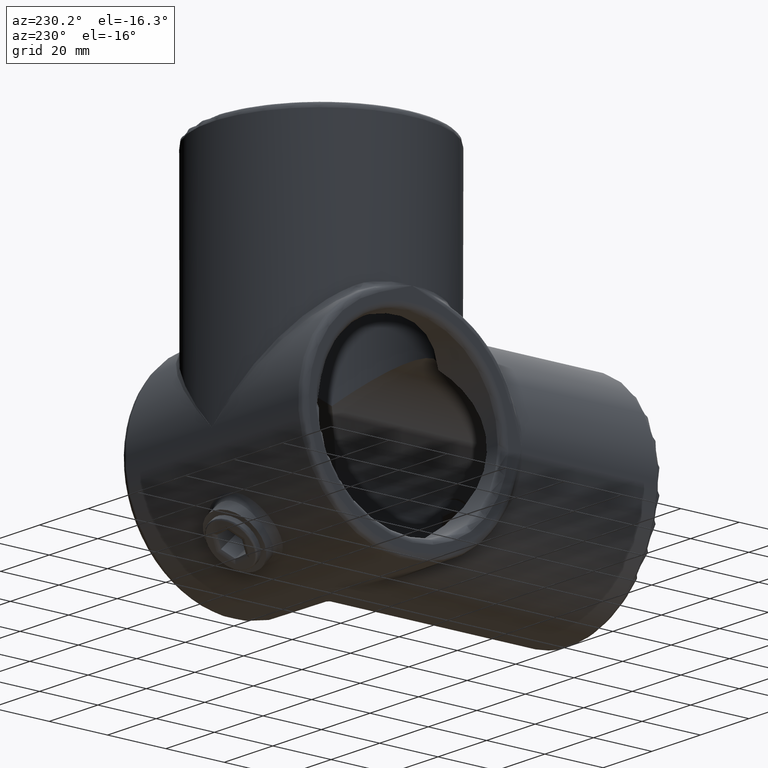
[diagram: clean part render]
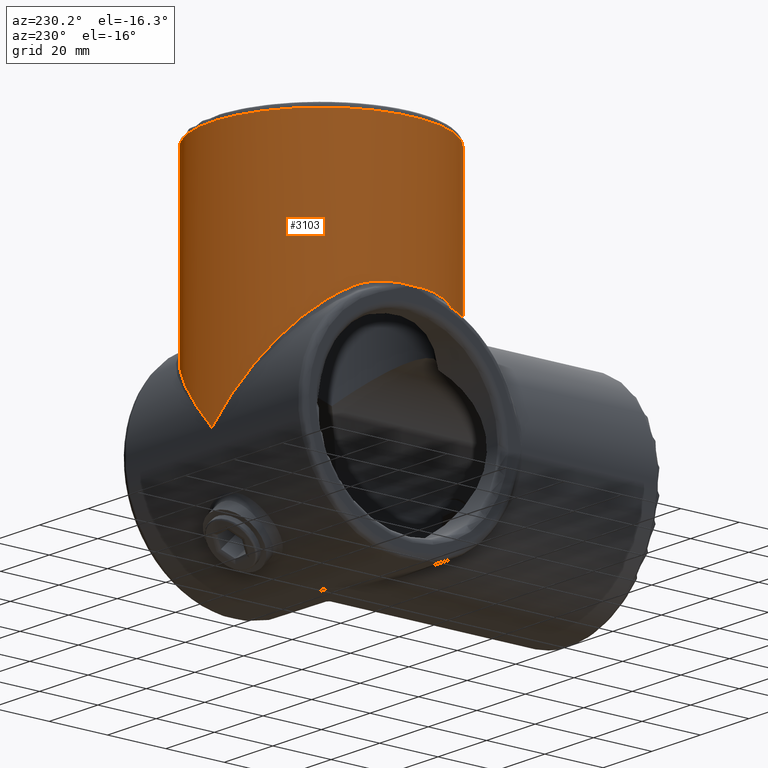
[diagram: same view with one face highlighted and labeled with its STEP entity id]
A machine part, auxiliary view. The second image highlights one B-rep face of the part: STEP entity #3103.
In plain terms, the highlighted cylindrical surface (bore or boss wall) has radius 37.5 mm, axis along (-0, -0, -1).
Its self-contained STEP definition (entity closure, byte-faithful):
#16 = CARTESIAN_POINT ( 'NONE',  ( -37.16886804582735238, 5.074283530360018446, 37.64687128089865098 ) ) ;
#171 = CARTESIAN_POINT ( 'NONE',  ( 33.70253164556961423, -16.44352032502100869, 35.49999999999999289 ) ) ;
#246 = ORIENTED_EDGE ( 'NONE', *, *, #11379, .T. ) ;
#343 = CARTESIAN_POINT ( 'NONE',  ( -37.45871938767920994, -2.033214594498826244, 37.64826296260255845 ) ) ;
#391 = CARTESIAN_POINT ( 'NONE',  ( 36.84076588884041570, 7.073186229652971946, 37.52650034794353928 ) ) ;
#502 = CARTESIAN_POINT ( 'NONE',  ( 37.49999999999998579, 1.015287633926893696, 37.59536827217129940 ) ) ;
#505 = CARTESIAN_POINT ( 'NONE',  ( -36.84076641201562552, -7.073183583681998066, 37.52650057928304506 ) ) ;
#520 = FACE_OUTER_BOUND ( 'NONE', #12398, .T. ) ;
#574 = CARTESIAN_POINT ( 'NONE',  ( 26.51650429449554025, -26.51650429449553314, 27.93071785686863251 ) ) ;
#714 = VERTEX_POINT ( 'NONE', #1768 ) ;
#729 = CARTESIAN_POINT ( 'NONE',  ( 35.94304763402886493, 10.69428242683783914, 76.15391420694000146 ) ) ;
#782 = CARTESIAN_POINT ( 'NONE',  ( 36.88692420147545903, 6.760435417672512770, 81.66684236380487505 ) ) ;
#832 = CARTESIAN_POINT ( 'NONE',  ( 36.37244388609272505, 9.136227189102495316, 79.21094179334554042 ) ) ;
#856 = CARTESIAN_POINT ( 'NONE',  ( 36.21349172177831122, -9.740474075376196694, 78.23579580776552689 ) ) ;
#878 = CARTESIAN_POINT ( 'NONE',  ( 0.000000000000000000, 0.000000000000000000, 83.99999999999998579 ) ) ;
#915 = CARTESIAN_POINT ( 'NONE',  ( 36.02357175092257791, -10.41982299368854292, 76.86673537089235708 ) ) ;
#944 = CARTESIAN_POINT ( 'NONE',  ( 37.49410491353660291, -0.7679522804003066083, 60.02039128000351553 ) ) ;
#973 = VERTEX_POINT ( 'NONE', #13433 ) ;
#989 = CARTESIAN_POINT ( 'NONE',  ( 35.72753137104100318, 11.39269512558609243, 71.23659299706230286 ) ) ;
#1040 = CARTESIAN_POINT ( 'NONE',  ( 36.02335388516703318, 10.42058920284471490, 67.13485408948842803 ) ) ;
#1064 = CARTESIAN_POINT ( 'NONE',  ( 37.47582038187493936, -1.540738528063899215, 83.91689285935017040 ) ) ;
#1107 = VERTEX_POINT ( 'NONE', #12252 ) ;
#1153 = CARTESIAN_POINT ( 'NONE',  ( 36.84128556230474771, -7.070557497887514309, 37.52673011236472433 ) ) ;
#1168 = CARTESIAN_POINT ( 'NONE',  ( -35.55237699891745251, -11.92805473356178858, 36.91368282840622328 ) ) ;
#1187 = CARTESIAN_POINT ( 'NONE',  ( -37.48710930667337493, 1.015450550942059049, 37.58240627360367370 ) ) ;
#1223 = ORIENTED_EDGE ( 'NONE', *, *, #11419, .T. ) ;
#1242 = CARTESIAN_POINT ( 'NONE',  ( -35.87301017381572166, 10.97238578611228199, 37.05731601627933003 ) ) ;
#1281 = CARTESIAN_POINT ( 'NONE',  ( 35.28254248133589499, -12.73231483386052965, 36.79280577951479358 ) ) ;
#1297 = ORIENTED_EDGE ( 'NONE', *, *, #2861, .T. ) ;
#1301 = CARTESIAN_POINT ( 'NONE',  ( -37.29343034741916085, 4.060343866366343590, 37.67382601114798746 ) ) ;
#1325 = CARTESIAN_POINT ( 'NONE',  ( 35.55237699891828385, -11.92805473355931056, 36.91368282840659276 ) ) ;
#1353 = B_SPLINE_CURVE_WITH_KNOTS ( 'NONE', 3,
 ( #3942, #14275, #343, #10575, #7954, #505, #6800, #1608, #4165, #10462 ),
 .UNSPECIFIED., .F., .F.,
 ( 4, 2, 2, 2, 4 ),
 ( -3.981502615935144295E-05, 0.003019457144233356725, 0.006078729314626065382, 0.009138001485018776640, 0.01219727365541148703 ),
 .UNSPECIFIED. ) ;
#1557 = CARTESIAN_POINT ( 'NONE',  ( 37.16834227683418845, 5.078023937300826240, 37.64671750140501416 ) ) ;
#1608 = CARTESIAN_POINT ( 'NONE',  ( -36.15358874213900009, -10.00885268706520215, 37.19929798019701650 ) ) ;
#1631 = CARTESIAN_POINT ( 'NONE',  ( -34.37179612724639099, 15.01639611171279043, 36.15157431549061329 ) ) ;
#1654 = CARTESIAN_POINT ( 'NONE',  ( 37.49742450454257892, -0.5076017670806430848, 37.54522746755906581 ) ) ;
#1768 = CARTESIAN_POINT ( 'NONE',  ( -33.70253164556961423, -16.44352032502100869, 35.49999999999999289 ) ) ;
#1800 = EDGE_CURVE ( 'NONE', #4586, #973, #4547, .T. ) ;
#1991 = ORIENTED_EDGE ( 'NONE', *, *, #13290, .T. ) ;
#1993 = CARTESIAN_POINT ( 'NONE',  ( 33.70253164556962133, 16.44352032502100514, 35.50000000000000000 ) ) ;
#2031 = CARTESIAN_POINT ( 'NONE',  ( -35.28254248133514892, -12.73231483386252094, 36.79280577951428199 ) ) ;
#2119 = CARTESIAN_POINT ( 'NONE',  ( 35.77242534059146806, -11.25117465437135245, 70.07765489997818520 ) ) ;
#2174 = CARTESIAN_POINT ( 'NONE',  ( 35.94308881682032109, -10.69414789592112847, 76.15436242734358530 ) ) ;
#2201 = CARTESIAN_POINT ( 'NONE',  ( 36.54455711728797951, 8.415233331987272081, 63.90171543676733990 ) ) ;
#2261 = CARTESIAN_POINT ( 'NONE',  ( 36.37385559259930545, 9.124089204251664142, 64.80379023213032497 ) ) ;
#2296 = DIRECTION ( 'NONE',  ( -0.000000000000000000, -0.000000000000000000, -1.000000000000000000 ) ) ;
#2312 = CARTESIAN_POINT ( 'NONE',  ( 36.99424394910394653, 6.146015346845751459, 61.88839277723545251 ) ) ;
#2398 = CARTESIAN_POINT ( 'NONE',  ( -37.49999999999997868, 0.2517015664468864045, 37.52364289948936715 ) ) ;
#2587 = CARTESIAN_POINT ( 'NONE',  ( 36.15388735879272986, -10.00782769620705359, 37.19944680579792617 ) ) ;
#2695 = EDGE_CURVE ( 'NONE', #14373, #4586, #13926, .T. ) ;
#2776 = CARTESIAN_POINT ( 'NONE',  ( 37.50000000000001421, -0.2517016090198413436, 37.52364252533511291 ) ) ;
#2800 = CARTESIAN_POINT ( 'NONE',  ( 35.90174274595996451, -10.83501138481256021, 68.21251994624302029 ) ) ;
#2861 = EDGE_CURVE ( 'NONE', #16197, #16197, #13859, .T. ) ;
#2893 = CARTESIAN_POINT ( 'NONE',  ( 35.55237699891744541, 11.92805473356180279, 36.91368282840622328 ) ) ;
#2907 = DIRECTION ( 'NONE',  ( -1.000000000000000000, 0.000000000000000000, 0.000000000000000000 ) ) ;
#3021 = CARTESIAN_POINT ( 'NONE',  ( -35.55237699891744541, 11.92805473356180102, 36.91368282840622328 ) ) ;
#3103 = ADVANCED_FACE ( 'NONE', ( #5676, #520 ), #7824, .T. ) ;
#3143 = ORIENTED_EDGE ( 'NONE', *, *, #2695, .T. ) ;
#3223 = CARTESIAN_POINT ( 'NONE',  ( 36.71628248931052241, 7.632122444039489473, 80.91776069180086495 ) ) ;
#3268 = CARTESIAN_POINT ( 'NONE',  ( -34.37179612724639099, -15.01639611171278155, 36.15157431549060618 ) ) ;
#3281 = CARTESIAN_POINT ( 'NONE',  ( 35.75015910301473809, 11.32244038401838893, 73.53593115423316817 ) ) ;
#3330 = CARTESIAN_POINT ( 'NONE',  ( 37.50000000000000711, 0.7781229037174881569, 83.99999999999998579 ) ) ;
#3353 = VERTEX_POINT ( 'NONE', #8555 ) ;
#3399 = CARTESIAN_POINT ( 'NONE',  ( 37.40726264751410213, -2.662132293200534239, 83.67469469202436017 ) ) ;
#3453 = CARTESIAN_POINT ( 'NONE',  ( 37.31235949058262946, -3.764716484860371803, 83.33305690308979763 ) ) ;
#3481 = CARTESIAN_POINT ( 'NONE',  ( 37.14480902407981233, 5.160084047985811218, 61.29402425536301280 ) ) ;
#3505 = EDGE_CURVE ( 'NONE', #3353, #14047, #6395, .T. ) ;
#3530 = CARTESIAN_POINT ( 'NONE',  ( 36.48647397327129482, 8.662770427305806820, 64.19683197825354171 ) ) ;
#3582 = EDGE_CURVE ( 'NONE', #973, #7892, #10556, .T. ) ;
#3585 = CARTESIAN_POINT ( 'NONE',  ( 36.31865360626475336, -9.340670759627666797, 65.11917971118916171 ) ) ;
#3821 = CARTESIAN_POINT ( 'NONE',  ( 35.55237699891828385, -11.92805473355931056, 36.91368282840659276 ) ) ;
#3845 = CARTESIAN_POINT ( 'NONE',  ( -37.49742449309746917, 0.5076025771615187976, 37.54522753203880825 ) ) ;
#3886 = CARTESIAN_POINT ( 'NONE',  ( -33.70253164556961423, 16.44352032502101579, 35.49999999999999289 ) ) ;
#3941 = CARTESIAN_POINT ( 'NONE',  ( 33.70253164556961423, -16.44352032502100869, 35.49999999999999289 ) ) ;
#3942 = CARTESIAN_POINT ( 'NONE',  ( -37.50000000000000000, 0.000000000000000000, 37.50000000000000711 ) ) ;
#4058 = B_SPLINE_CURVE_WITH_KNOTS ( 'NONE', 3,
 ( #6903, #2031, #14652, #3268, #14699, #7016 ),
 .UNSPECIFIED., .F., .F.,
 ( 4, 2, 4 ),
 ( 1.734723475976807094E-18, 0.002540170096582382731, 0.005080340193164763728 ),
 .UNSPECIFIED. ) ;
#4165 = CARTESIAN_POINT ( 'NONE',  ( -35.87283984967638162, -10.97289344877389539, 37.05723971662909833 ) ) ;
#4201 = CARTESIAN_POINT ( 'NONE',  ( -31.87728636095476986, -20.18453111527462696, 33.57740830020568978 ) ) ;
#4501 = CARTESIAN_POINT ( 'NONE',  ( 36.48653137674817515, 8.675319214370707854, 79.81669335658287423 ) ) ;
#4547 =( BOUNDED_CURVE ( )  B_SPLINE_CURVE ( 3, ( #9591, #5702, #12117, #8209 ),
 .UNSPECIFIED., .F., .F. ) 
 B_SPLINE_CURVE_WITH_KNOTS ( ( 4, 4 ),
 ( 3.595514811673135025, 4.712388980384689674 ),
 .UNSPECIFIED. ) 
 CURVE ( )  GEOMETRIC_REPRESENTATION_ITEM ( )  RATIONAL_B_SPLINE_CURVE ( ( 1.000000000000000000, 0.8987228500647228557, 0.8987228500647228557, 1.000000000000000000 ) ) 
 REPRESENTATION_ITEM ( '' )  );
#4586 = VERTEX_POINT ( 'NONE', #1993 ) ;
#4680 = CARTESIAN_POINT ( 'NONE',  ( 36.88785800503321610, -6.755305283850437270, 81.67077919186996837 ) ) ;
#4727 = CARTESIAN_POINT ( 'NONE',  ( 37.37901960281241287, -3.032186422107963075, 83.57421112921792883 ) ) ;
#4753 = CARTESIAN_POINT ( 'NONE',  ( 35.83778855736309765, 11.04193569282301901, 68.94800326678344504 ) ) ;
#4802 = CARTESIAN_POINT ( 'NONE',  ( 37.19060355591759759, -4.819997189492526424, 61.11960832908665253 ) ) ;
#4861 = CARTESIAN_POINT ( 'NONE',  ( 36.21347193453279800, -9.740491797564249765, 65.76452312472494555 ) ) ;
#4911 = VERTEX_POINT ( 'NONE', #7623 ) ;
#5108 = CARTESIAN_POINT ( 'NONE',  ( 34.99099251163526958, 13.51084617067110649, 36.61816340466893394 ) ) ;
#5116 = CARTESIAN_POINT ( 'NONE',  ( 26.51650429449554025, -26.51650429449553314, 27.93071785686863251 ) ) ;
#5163 = CARTESIAN_POINT ( 'NONE',  ( 35.83782779301116506, -11.04180612417681040, 68.94783590777738880 ) ) ;
#5265 = CARTESIAN_POINT ( 'NONE',  ( 29.45985969962442752, -23.57314888936662456, 31.03105221693772720 ) ) ;
#5313 = CARTESIAN_POINT ( 'NONE',  ( 37.41745217640549015, -2.538376947718091081, 37.65456040323375930 ) ) ;
#5350 = CARTESIAN_POINT ( 'NONE',  ( -34.99099251163525537, 13.51084617067110827, 36.61816340466892683 ) ) ;
#5372 = B_SPLINE_CURVE_WITH_KNOTS ( 'NONE', 3,
 ( #8851, #1242, #15118, #16395, #8689, #16, #1301, #7428, #16341, #8740, #1187, #3845, #2398, #12720 ),
 .UNSPECIFIED., .F., .F.,
 ( 4, 2, 2, 2, 2, 2, 4 ),
 ( 0.000000000000000000, 0.003033714103270346556, 0.006067428206540693113, 0.009101142309811039235, 0.01061799936144621100, 0.01137642788726379688, 0.01213485641308138102 ),
 .UNSPECIFIED. ) ;
#5657 = EDGE_CURVE ( 'NONE', #14617, #13659, #1353, .T. ) ;
#5676 = FACE_OUTER_BOUND ( 'NONE', #6005, .T. ) ;
#5702 = CARTESIAN_POINT ( 'NONE',  ( 27.23944456190989527, 29.69022131481259663, 28.69221493854508864 ) ) ;
#5770 = CARTESIAN_POINT ( 'NONE',  ( 36.15937620718070633, 9.946096410423313827, 77.90348116381956345 ) ) ;
#5969 = CARTESIAN_POINT ( 'NONE',  ( 37.27379938098634682, 4.127644168142483139, 83.19180892645933056 ) ) ;
#6005 = EDGE_LOOP ( 'NONE', ( #1297, #1223 ) ) ;
#6026 = CARTESIAN_POINT ( 'NONE',  ( 37.50589650436086231, 0.0001125121530445030650, 59.97960380383096890 ) ) ;
#6085 = CARTESIAN_POINT ( 'NONE',  ( 37.04582453117237861, -5.828353272247344563, 61.68157589377127437 ) ) ;
#6110 = CARTESIAN_POINT ( 'NONE',  ( 36.16259258788479514, -9.927131618540943947, 77.89990619071751610 ) ) ;
#6136 = CARTESIAN_POINT ( 'NONE',  ( 36.71816874909389128, 7.636053393939571166, 63.06024314360231386 ) ) ;
#6390 = B_SPLINE_CURVE_WITH_KNOTS ( 'NONE', 3,
 ( #13063, #6606, #1631, #5350, #9259, #3021 ),
 .UNSPECIFIED., .F., .F.,
 ( 4, 2, 4 ),
 ( 0.000000000000000000, 0.002540170096582380129, 0.005080340193164760258 ),
 .UNSPECIFIED. ) ;
#6395 = B_SPLINE_CURVE_WITH_KNOTS ( 'NONE', 3,
 ( #1325, #10168, #2587, #8711, #1153, #10001, #12581, #5313, #10330, #15534, #13031, #1654, #2776, #14206 ),
 .UNSPECIFIED., .F., .F.,
 ( 4, 2, 2, 2, 2, 2, 4 ),
 ( 0.000000000000000000, 0.003033714189841859969, 0.006067428379683719938, 0.009101142569525579040, 0.01061799966444650946, 0.01137642821190697554, 0.01213485675936743988 ),
 .UNSPECIFIED. ) ;
#6498 = CARTESIAN_POINT ( 'NONE',  ( 34.04410011787200574, 15.74344381954283989, 35.85978545749184576 ) ) ;
#6606 = CARTESIAN_POINT ( 'NONE',  ( -34.04410011787199863, 15.74344381954284700, 35.85978545749183155 ) ) ;
#6645 = CARTESIAN_POINT ( 'NONE',  ( 26.51650429449554025, -26.51650429449553314, 27.93071785686863251 ) ) ;
#6659 = ORIENTED_EDGE ( 'NONE', *, *, #15303, .T. ) ;
#6716 = EDGE_CURVE ( 'NONE', #14047, #14373, #16134, .T. ) ;
#6800 = CARTESIAN_POINT ( 'NONE',  ( -36.63758624338218084, -8.058932020176479583, 37.43315975998176981 ) ) ;
#6903 = CARTESIAN_POINT ( 'NONE',  ( -35.55237699891745251, -11.92805473356178858, 36.91368282840622328 ) ) ;
#6923 = EDGE_CURVE ( 'NONE', #714, #4911, #10061, .T. ) ;
#7016 = CARTESIAN_POINT ( 'NONE',  ( -33.70253164556961423, -16.44352032502100869, 35.49999999999999289 ) ) ;
#7080 = ORIENTED_EDGE ( 'NONE', *, *, #6716, .T. ) ;
#7134 = ORIENTED_EDGE ( 'NONE', *, *, #3505, .T. ) ;
#7156 = CARTESIAN_POINT ( 'NONE',  ( 37.04948495595706959, -5.829111013555403176, 82.34034341434241355 ) ) ;
#7245 = CARTESIAN_POINT ( 'NONE',  ( 37.45264573695159527, 1.921286446620215527, 60.16496535722160388 ) ) ;
#7264 = CARTESIAN_POINT ( 'NONE',  ( 37.27395354290104024, -4.126234104393347479, 83.19237650364925685 ) ) ;
#7291 = CARTESIAN_POINT ( 'NONE',  ( 35.75048292470766853, 11.32141347963626110, 70.45721881489734528 ) ) ;
#7314 = CARTESIAN_POINT ( 'NONE',  ( 35.75014697353144300, -11.32247686374629936, 73.53541716220483693 ) ) ;
#7336 = CARTESIAN_POINT ( 'NONE',  ( 36.83264182310929868, -7.070826324941778651, 62.55823886509019616 ) ) ;
#7376 = CARTESIAN_POINT ( 'NONE',  ( -26.51650429449554025, -26.51650429449553314, 27.93071785686863251 ) ) ;
#7395 = CARTESIAN_POINT ( 'NONE',  ( 37.38338331919039348, 3.049706353197425557, 60.40969032735898736 ) ) ;
#7428 = CARTESIAN_POINT ( 'NONE',  ( -37.41745215161218852, 2.538377302441197525, 37.65456041161523615 ) ) ;
#7623 = CARTESIAN_POINT ( 'NONE',  ( -26.51650429449554025, -26.51650429449553314, 27.93071785686863251 ) ) ;
#7748 = CARTESIAN_POINT ( 'NONE',  ( 33.70253164556962133, 16.44352032502100514, 35.50000000000000000 ) ) ;
#7824 = CYLINDRICAL_SURFACE ( 'NONE', #10480, 37.50000000000000711 ) ;
#7892 = VERTEX_POINT ( 'NONE', #3886 ) ;
#7902 = B_SPLINE_CURVE_WITH_KNOTS ( 'NONE', 3,
 ( #3941, #13929, #15321, #16478, #1281, #3821 ),
 .UNSPECIFIED., .F., .F.,
 ( 4, 2, 4 ),
 ( 0.000000000000000000, 0.002540170096583685942, 0.005080340193167371884 ),
 .UNSPECIFIED. ) ;
#7954 = CARTESIAN_POINT ( 'NONE',  ( -37.16834280626585496, -5.078020172180512048, 37.64671765636122558 ) ) ;
#7964 = DIRECTION ( 'NONE',  ( -0.000000000000000000, -0.000000000000000000, -1.000000000000000000 ) ) ;
#8209 = CARTESIAN_POINT ( 'NONE',  ( 0.000000000000000000, 37.50000000000000711, 0.000000000000000000 ) ) ;
#8233 = ORIENTED_EDGE ( 'NONE', *, *, #6923, .T. ) ;
#8237 = CARTESIAN_POINT ( 'NONE',  ( 37.04902950354859570, 5.832158191685842041, 82.33859198340883268 ) ) ;
#8290 = CARTESIAN_POINT ( 'NONE',  ( 36.06353111835302627, 10.28363372858767910, 77.22059193902654783 ) ) ;
#8396 = CARTESIAN_POINT ( 'NONE',  ( 36.65868205989471562, 7.903199572070085388, 80.65160440909565409 ) ) ;
#8417 = CARTESIAN_POINT ( 'NONE',  ( 35.72767689318970952, -11.39223875479270731, 72.77209970887288648 ) ) ;
#8468 = CARTESIAN_POINT ( 'NONE',  ( 35.90674442075378892, -10.81515884340507050, 75.79110690179150822 ) ) ;
#8487 = ORIENTED_EDGE ( 'NONE', *, *, #1800, .T. ) ;
#8493 = CARTESIAN_POINT ( 'NONE',  ( 37.47050590946120963, 1.535808197661997498, 60.10259699871268424 ) ) ;
#8546 = CARTESIAN_POINT ( 'NONE',  ( 37.50000000000000711, 0.000000000000000000, 83.99999999999998579 ) ) ;
#8548 = CARTESIAN_POINT ( 'NONE',  ( 36.31900792071584760, 9.339299113661258644, 65.11709111652588433 ) ) ;
#8555 = CARTESIAN_POINT ( 'NONE',  ( 35.55237699891828385, -11.92805473355931056, 36.91368282840659276 ) ) ;
#8574 = CARTESIAN_POINT ( 'NONE',  ( 37.50000000000000711, 1.517883041479706208E-15, 83.99999999999998579 ) ) ;
#8608 = CARTESIAN_POINT ( 'NONE',  ( 36.54351716820119123, -8.419771011321785181, 63.90688974812325540 ) ) ;
#8689 = CARTESIAN_POINT ( 'NONE',  ( -36.84128553442193521, 7.070557638956159963, 37.52673010003826448 ) ) ;
#8711 = CARTESIAN_POINT ( 'NONE',  ( 36.63805932777783880, -8.056847711324309103, 37.43338380382431296 ) ) ;
#8740 = CARTESIAN_POINT ( 'NONE',  ( -37.47937206927852571, 1.269335129179440802, 37.59832687957958086 ) ) ;
#8827 = ORIENTED_EDGE ( 'NONE', *, *, #14149, .T. ) ;
#8851 = CARTESIAN_POINT ( 'NONE',  ( -35.55237699891744541, 11.92805473356180102, 36.91368282840622328 ) ) ;
#9056 = CARTESIAN_POINT ( 'NONE',  ( -37.50000000000000000, 0.000000000000000000, 37.50000000000000711 ) ) ;
#9259 = CARTESIAN_POINT ( 'NONE',  ( -35.28254248133514182, 12.73231483386256002, 36.79280577951436726 ) ) ;
#9276 = CARTESIAN_POINT ( 'NONE',  ( -26.51650429449554025, -26.51650429449553314, 27.93071785686863251 ) ) ;
#9554 = CARTESIAN_POINT ( 'NONE',  ( 35.84316334365108503, 11.02404497266418204, 75.05132363733640943 ) ) ;
#9591 = CARTESIAN_POINT ( 'NONE',  ( 33.70253164556962133, 16.44352032502100514, 35.50000000000000000 ) ) ;
#9614 = CARTESIAN_POINT ( 'NONE',  ( 36.83031188872382700, 7.061360988859829213, 81.42503802785647338 ) ) ;
#9662 = CARTESIAN_POINT ( 'NONE',  ( 35.90676265522361632, 10.81509693254825244, 75.79124622879315609 ) ) ;
#9713 = CARTESIAN_POINT ( 'NONE',  ( 37.40714783550551914, 2.663756637316376352, 83.67428699581492424 ) ) ;
#9742 = CARTESIAN_POINT ( 'NONE',  ( 36.48708060225641248, -8.673050596362452680, 79.81955824296257163 ) ) ;
#9778 = CARTESIAN_POINT ( 'NONE',  ( 37.47049553488584905, -1.536104925570541679, 60.10263317891998014 ) ) ;
#9835 = CARTESIAN_POINT ( 'NONE',  ( 36.83295497166913890, 7.069214107162187233, 62.55688495318001685 ) ) ;
#9860 = CARTESIAN_POINT ( 'NONE',  ( 36.37321730346353377, -9.133144835189407118, 79.21519769690274870 ) ) ;
#9888 = CARTESIAN_POINT ( 'NONE',  ( 36.48574569596122785, -8.665819646223054562, 64.20063397554082485 ) ) ;
#9946 = ORIENTED_EDGE ( 'NONE', *, *, #5657, .T. ) ;
#10001 = CARTESIAN_POINT ( 'NONE',  ( 37.16886807403369630, -5.074283329623614947, 37.64687128914297176 ) ) ;
#10047 = ORIENTED_EDGE ( 'NONE', *, *, #14075, .T. ) ;
#10061 =( BOUNDED_CURVE ( )  B_SPLINE_CURVE ( 3, ( #13028, #4201, #11689, #9276 ),
 .UNSPECIFIED., .F., .T. ) 
 B_SPLINE_CURVE_WITH_KNOTS ( ( 4, 4 ),
 ( 3.595514811673135025, 3.926990816987240951 ),
 .UNSPECIFIED. ) 
 CURVE ( )  GEOMETRIC_REPRESENTATION_ITEM ( )  RATIONAL_B_SPLINE_CURVE ( ( 1.000000000000000000, 0.9908645787168743890, 0.9908645787168743890, 1.000000000000000000 ) ) 
 REPRESENTATION_ITEM ( '' )  );
#10168 = CARTESIAN_POINT ( 'NONE',  ( 35.87301018296623312, -10.97238575883833533, 37.05731602037850081 ) ) ;
#10330 = CARTESIAN_POINT ( 'NONE',  ( 37.44841480336505413, -2.030861477055764919, 37.63829854632308525 ) ) ;
#10462 = CARTESIAN_POINT ( 'NONE',  ( -35.55237699891745251, -11.92805473356178858, 36.91368282840622328 ) ) ;
#10469 =( BOUNDED_CURVE ( )  B_SPLINE_CURVE ( 3, ( #6645, #5265, #15602, #171 ),
 .UNSPECIFIED., .F., .T. ) 
 B_SPLINE_CURVE_WITH_KNOTS ( ( 4, 4 ),
 ( 2.356194490192345281, 2.687670495506451207 ),
 .UNSPECIFIED. ) 
 CURVE ( )  GEOMETRIC_REPRESENTATION_ITEM ( )  RATIONAL_B_SPLINE_CURVE ( ( 1.000000000000000000, 0.9908645787168743890, 0.9908645787168743890, 1.000000000000000000 ) ) 
 REPRESENTATION_ITEM ( '' )  );
#10471 = CARTESIAN_POINT ( 'NONE',  ( 0.000000000000000000, 0.000000000000000000, 86.00000000000000000 ) ) ;
#10480 = AXIS2_PLACEMENT_3D ( 'NONE', #10471, #7964, #2907 ) ;
#10511 = CARTESIAN_POINT ( 'NONE',  ( 36.63758576665542677, 8.058934120272883916, 37.43315953420256648 ) ) ;
#10556 =( BOUNDED_CURVE ( )  B_SPLINE_CURVE ( 3, ( #11902, #10619, #15808, #10561 ),
 .UNSPECIFIED., .F., .T. ) 
 B_SPLINE_CURVE_WITH_KNOTS ( ( 4, 4 ),
 ( 1.570796326794896558, 2.687670495506451207 ),
 .UNSPECIFIED. ) 
 CURVE ( )  GEOMETRIC_REPRESENTATION_ITEM ( )  RATIONAL_B_SPLINE_CURVE ( ( 1.000000000000000000, 0.8987228500647228557, 0.8987228500647228557, 1.000000000000000000 ) ) 
 REPRESENTATION_ITEM ( '' )  );
#10561 = CARTESIAN_POINT ( 'NONE',  ( -33.70253164556961423, 16.44352032502101579, 35.49999999999999289 ) ) ;
#10575 = CARTESIAN_POINT ( 'NONE',  ( -37.29289124011488354, -4.065695845133932451, 37.67379631693476227 ) ) ;
#10619 = CARTESIAN_POINT ( 'NONE',  ( -14.73928701681038334, 37.49999999999999289, 15.52538232437360222 ) ) ;
#10857 = CARTESIAN_POINT ( 'NONE',  ( 35.81579444648758681, 11.11234679093840505, 74.67241527060096473 ) ) ;
#10903 = ORIENTED_EDGE ( 'NONE', *, *, #11571, .T. ) ;
#10909 = CARTESIAN_POINT ( 'NONE',  ( 37.31221369398657828, 3.766152443830564689, 83.33252460429226005 ) ) ;
#10987 =( BOUNDED_CURVE ( )  B_SPLINE_CURVE ( 3, ( #7376, #12614, #15187, #5116 ),
 .UNSPECIFIED., .F., .F. ) 
 B_SPLINE_CURVE_WITH_KNOTS ( ( 4, 4 ),
 ( 2.356194490192344837, 3.926990816987241395 ),
 .UNSPECIFIED. ) 
 CURVE ( )  GEOMETRIC_REPRESENTATION_ITEM ( )  RATIONAL_B_SPLINE_CURVE ( ( 1.000000000000000000, 0.8047378541243649375, 0.8047378541243649375, 1.000000000000000000 ) ) 
 REPRESENTATION_ITEM ( '' )  );
#10991 = CARTESIAN_POINT ( 'NONE',  ( 35.73322077325936874, -11.37489844845468312, 71.23030074963807579 ) ) ;
#11051 = CARTESIAN_POINT ( 'NONE',  ( 36.83139594047587195, -7.055741383757869301, 81.42974964023001405 ) ) ;
#11060 = VERTEX_POINT ( 'NONE', #12584 ) ;
#11076 = CARTESIAN_POINT ( 'NONE',  ( 37.45263474587770958, -1.921486133358259352, 60.16500401989528513 ) ) ;
#11122 = CARTESIAN_POINT ( 'NONE',  ( 37.14428016490661122, -5.163842376704987913, 61.29606490727053369 ) ) ;
#11183 = CARTESIAN_POINT ( 'NONE',  ( 36.37340216178563423, -9.125879919669509732, 64.80635836745170764 ) ) ;
#11379 = EDGE_CURVE ( 'NONE', #13659, #714, #4058, .T. ) ;
#11419 = EDGE_CURVE ( 'NONE', #16197, #16197, #13565, .T. ) ;
#11470 = ORIENTED_EDGE ( 'NONE', *, *, #3582, .T. ) ;
#11548 = CARTESIAN_POINT ( 'NONE',  ( 35.55237699891744541, 11.92805473356180279, 36.91368282840622328 ) ) ;
#11571 = EDGE_CURVE ( 'NONE', #4911, #15471, #10987, .T. ) ;
#11689 = CARTESIAN_POINT ( 'NONE',  ( -29.45985969962443107, -23.57314888936662101, 31.03105221693773430 ) ) ;
#11808 = CARTESIAN_POINT ( 'NONE',  ( 36.15358844124713755, 10.00885371982484173, 37.19929783024023351 ) ) ;
#11870 = CARTESIAN_POINT ( 'NONE',  ( 36.02313545381439042, -10.42134171077158378, 67.13667258076334576 ) ) ;
#11902 = CARTESIAN_POINT ( 'NONE',  ( 0.000000000000000000, 37.50000000000000711, 0.000000000000000000 ) ) ;
#12085 = CARTESIAN_POINT ( 'NONE',  ( 37.47576684459248497, 1.542119920950304479, 83.91670789732809510 ) ) ;
#12117 = CARTESIAN_POINT ( 'NONE',  ( 14.73928701681039044, 37.49999999999999289, 15.52538232437360755 ) ) ;
#12137 = CARTESIAN_POINT ( 'NONE',  ( 35.72771693258161463, 11.39211318757821090, 72.77298230497386555 ) ) ;
#12199 = CARTESIAN_POINT ( 'NONE',  ( 37.14790860917016602, 5.174664496952144255, 82.72052909322513869 ) ) ;
#12252 = CARTESIAN_POINT ( 'NONE',  ( -35.55237699891744541, 11.92805473356180102, 36.91368282840622328 ) ) ;
#12269 = CARTESIAN_POINT ( 'NONE',  ( 37.50000000000000711, -0.7781229037174629548, 83.99999999999998579 ) ) ;
#12325 = CARTESIAN_POINT ( 'NONE',  ( 35.72759748818740633, -11.39248777614685970, 71.61804131180326749 ) ) ;
#12351 = CARTESIAN_POINT ( 'NONE',  ( 37.38338218704998894, -3.049683546241732657, 60.40969467183521147 ) ) ;
#12398 = EDGE_LOOP ( 'NONE', ( #9946, #246, #8233, #10903, #8827, #10047, #7134, #7080, #3143, #8487, #11470, #6659, #1991 ) ) ;
#12413 = CARTESIAN_POINT ( 'NONE',  ( 37.49410206214297858, 0.7680042217201867860, 60.02040125365725487 ) ) ;
#12467 = CARTESIAN_POINT ( 'NONE',  ( 36.06815916125137278, 10.26494414180661607, 66.78068723933553485 ) ) ;
#12581 = CARTESIAN_POINT ( 'NONE',  ( 37.29343037140908024, -4.060343672899012546, 37.67382601648148466 ) ) ;
#12584 = CARTESIAN_POINT ( 'NONE',  ( 33.70253164556961423, -16.44352032502100869, 35.49999999999999289 ) ) ;
#12614 = CARTESIAN_POINT ( 'NONE',  ( -10.98349570550446863, -42.04951288348659943, 44.29215357060588332 ) ) ;
#12720 = CARTESIAN_POINT ( 'NONE',  ( -37.50000000000000000, 0.000000000000000000, 37.50000000000000711 ) ) ;
#12776 = CARTESIAN_POINT ( 'NONE',  ( 35.28254248133514182, 12.73231483386252982, 36.79280577951428910 ) ) ;
#13028 = CARTESIAN_POINT ( 'NONE',  ( -33.70253164556961423, -16.44352032502100869, 35.49999999999999289 ) ) ;
#13031 = CARTESIAN_POINT ( 'NONE',  ( 37.48710932525953865, -1.015449882491476385, 37.58240622984234847 ) ) ;
#13063 = CARTESIAN_POINT ( 'NONE',  ( -33.70253164556961423, 16.44352032502101579, 35.49999999999999289 ) ) ;
#13098 = CARTESIAN_POINT ( 'NONE',  ( 36.06796644745939773, -10.26562092291118056, 66.78216041325988783 ) ) ;
#13290 = EDGE_CURVE ( 'NONE', #1107, #14617, #5372, .T. ) ;
#13433 = CARTESIAN_POINT ( 'NONE',  ( 0.000000000000000000, 37.50000000000000711, 0.000000000000000000 ) ) ;
#13531 = CARTESIAN_POINT ( 'NONE',  ( 35.55237699891744541, 11.92805473356180279, 36.91368282840622328 ) ) ;
#13565 = CIRCLE ( 'NONE', #14718, 37.50000000000000711 ) ;
#13597 = CARTESIAN_POINT ( 'NONE',  ( 37.37888748169369535, 3.033803818109163331, 83.57373799350061461 ) ) ;
#13617 = CARTESIAN_POINT ( 'NONE',  ( 37.14818257994141959, -5.172640855283904493, 82.72157372834858791 ) ) ;
#13642 = CARTESIAN_POINT ( 'NONE',  ( 36.16323325255277865, 9.924804493652867876, 66.09571265373919857 ) ) ;
#13659 = VERTEX_POINT ( 'NONE', #1168 ) ;
#13691 = CARTESIAN_POINT ( 'NONE',  ( 35.90181065271011107, 10.83479624813566033, 68.21168412054758790 ) ) ;
#13744 = CARTESIAN_POINT ( 'NONE',  ( 36.16303653703339904, -9.925520893593214211, 66.09704552410843803 ) ) ;
#13859 = B_SPLINE_CURVE_WITH_KNOTS ( 'NONE', 3,
 ( #15881, #3330, #12085, #9713, #13597, #10909, #5969, #12199, #8237, #782, #9614, #3223, #8396, #4501, #832, #5770, #8290, #729, #9662, #9554, #10857, #3281, #12137, #989, #7291, #4753, #13691, #1040, #12467, #13642, #16212, #8548, #2261, #3530, #2201, #6136, #9835, #2312, #14872, #3481, #16154, #15032, #7395, #7245, #8493, #12413, #6026, #944, #9778, #11076, #12351, #14916, #4802, #11122, #6085, #14976, #7336, #16257, #8608, #9888, #11183, #3585, #4861, #13744, #13098, #11870, #2800, #5163, #2119, #14791, #10991, #12325, #8417, #7314, #16124, #14890, #8468, #2174, #915, #14942, #6110, #856, #9860, #9742, #16069, #16233, #11051, #4680, #7156, #13617, #7264, #3453, #4727, #3399, #1064, #12269, #8574 ),
 .UNSPECIFIED., .T., .F.,
 ( 4, 2, 2, 2, 2, 2, 2, 2, 2, 2, 2, 2, 2, 2, 2, 2, 2, 2, 2, 2, 2, 2, 2, 1, 2, 2, 2, 2, 2, 2, 2, 2, 2, 2, 2, 2, 2, 2, 2, 2, 2, 2, 2, 2, 2, 2, 2, 2, 4 ),
 ( 0.000000000000000000, 0.002334351825592537177, 0.003501527738388805332, 0.004668703651185072620, 0.007003055476777627145, 0.008170231389573904407, 0.009337407302370181669, 0.01167175912796273619, 0.01400611095355528725, 0.01517328686635158359, 0.01634046277914787820, 0.01867481460474042926, 0.02100916643033298031, 0.02334351825592552790, 0.02451069416872180690, 0.02567787008151808242, 0.02684504599431436142, 0.02801222190711063348, 0.03034657373270321923, 0.03151374964549951557, 0.03268092555829581886, 0.03501527738388841848, 0.03618245329668471483, 0.03734962920948101811, 0.03851680512227731445, 0.03968398103507361774, 0.04201833286066621737, 0.04318550877346251371, 0.04435268468625881699, 0.04668703651185139580, 0.04785421242464768521, 0.04902138833744398849, 0.05018856425024027790, 0.05135574016303657424, 0.05369009198862911836, 0.05485726790142536613, 0.05602444381422161390, 0.05835879563981410945, 0.05952597155261036416, 0.06069314746540661193, 0.06186032337820287358, 0.06302749929099911441, 0.06536185111659160996, 0.06652902702938784385, 0.06769620294218406387, 0.07003055476777653165, 0.07119773068057277943, 0.07236490659336899944, 0.07469925841896146723 ),
 .UNSPECIFIED. ) ;
#13926 = B_SPLINE_CURVE_WITH_KNOTS ( 'NONE', 3,
 ( #11548, #12776, #5108, #15342, #6498, #7748 ),
 .UNSPECIFIED., .F., .F.,
 ( 4, 2, 4 ),
 ( 0.000000000000000000, 0.002540170096582371889, 0.005080340193164743778 ),
 .UNSPECIFIED. ) ;
#13929 = CARTESIAN_POINT ( 'NONE',  ( 34.04410011787216916, -15.74344381954246863, 35.85978545749202340 ) ) ;
#14047 = VERTEX_POINT ( 'NONE', #15114 ) ;
#14075 = EDGE_CURVE ( 'NONE', #11060, #3353, #7902, .T. ) ;
#14149 = EDGE_CURVE ( 'NONE', #15471, #11060, #10469, .T. ) ;
#14206 = CARTESIAN_POINT ( 'NONE',  ( 37.50000000000000000, 0.000000000000000000, 37.50000000000000711 ) ) ;
#14214 = CARTESIAN_POINT ( 'NONE',  ( 37.45871848459896825, 2.033228236099184461, 37.64826333258454838 ) ) ;
#14272 = CARTESIAN_POINT ( 'NONE',  ( 37.29289089166251614, 4.065697542988347735, 37.67379613965555052 ) ) ;
#14275 = CARTESIAN_POINT ( 'NONE',  ( -37.49999999999999289, -1.015288428021774658, 37.59536682134684327 ) ) ;
#14373 = VERTEX_POINT ( 'NONE', #13531 ) ;
#14431 = CARTESIAN_POINT ( 'NONE',  ( 37.50000000000000000, 0.000000000000000000, 37.50000000000000711 ) ) ;
#14617 = VERTEX_POINT ( 'NONE', #9056 ) ;
#14652 = CARTESIAN_POINT ( 'NONE',  ( -34.99099251163528379, -13.51084617067110472, 36.61816340466893394 ) ) ;
#14699 = CARTESIAN_POINT ( 'NONE',  ( -34.04410011787200574, -15.74344381954283634, 35.85978545749184576 ) ) ;
#14718 = AXIS2_PLACEMENT_3D ( 'NONE', #878, #2296, #15018 ) ;
#14791 = CARTESIAN_POINT ( 'NONE',  ( 35.75569960247714363, -11.30404031665531406, 70.45876441598852580 ) ) ;
#14872 = CARTESIAN_POINT ( 'NONE',  ( 37.04619530499700630, 5.826037954017727394, 61.68009423373448641 ) ) ;
#14890 = CARTESIAN_POINT ( 'NONE',  ( 35.84306493821324580, -11.02436626479927639, 75.05010582713005363 ) ) ;
#14916 = CARTESIAN_POINT ( 'NONE',  ( 37.31624069193211568, -3.773810231366628187, 60.64937300075665405 ) ) ;
#14942 = CARTESIAN_POINT ( 'NONE',  ( 36.06771183255519730, -10.26650904703907763, 77.21585261114313425 ) ) ;
#14976 = CARTESIAN_POINT ( 'NONE',  ( 36.99392046974340786, -6.147956605656591300, 61.88970561775256130 ) ) ;
#15018 = DIRECTION ( 'NONE',  ( 1.000000000000000000, 0.000000000000000000, 0.000000000000000000 ) ) ;
#15032 = CARTESIAN_POINT ( 'NONE',  ( 37.31627723938525065, 3.773230749924147975, 60.64925663755257546 ) ) ;
#15114 = CARTESIAN_POINT ( 'NONE',  ( 37.50000000000000000, 0.000000000000000000, 37.50000000000000711 ) ) ;
#15118 = CARTESIAN_POINT ( 'NONE',  ( -36.15388734275191496, 10.00782775126887003, 37.19944679780330432 ) ) ;
#15187 = CARTESIAN_POINT ( 'NONE',  ( 10.98349570550445975, -42.04951288348660654, 44.29215357060588332 ) ) ;
#15303 = EDGE_CURVE ( 'NONE', #7892, #1107, #6390, .T. ) ;
#15321 = CARTESIAN_POINT ( 'NONE',  ( 34.37179612724673916, -15.01639611171202127, 36.15157431549092593 ) ) ;
#15342 = CARTESIAN_POINT ( 'NONE',  ( 34.37179612724639099, 15.01639611171277444, 36.15157431549060618 ) ) ;
#15471 = VERTEX_POINT ( 'NONE', #574 ) ;
#15494 = CARTESIAN_POINT ( 'NONE',  ( 35.87283967805162632, 10.97289396031314546, 37.05723963974680402 ) ) ;
#15534 = CARTESIAN_POINT ( 'NONE',  ( 37.47937209015078963, -1.269334524070015791, 37.59832684407579961 ) ) ;
#15602 = CARTESIAN_POINT ( 'NONE',  ( 31.87728636095476276, -20.18453111527463051, 33.57740830020568268 ) ) ;
#15808 = CARTESIAN_POINT ( 'NONE',  ( -27.23944456190988461, 29.69022131481260729, 28.69221493854507443 ) ) ;
#15881 = CARTESIAN_POINT ( 'NONE',  ( 37.50000000000000711, 1.517883041479706208E-15, 83.99999999999998579 ) ) ;
#16069 = CARTESIAN_POINT ( 'NONE',  ( 36.65939240401662857, -7.899915376064686967, 80.65494802846772870 ) ) ;
#16124 = CARTESIAN_POINT ( 'NONE',  ( 35.81572052236219861, -11.11258458702725171, 74.67128697158943851 ) ) ;
#16134 = B_SPLINE_CURVE_WITH_KNOTS ( 'NONE', 3,
 ( #14431, #502, #14214, #14272, #1557, #391, #10511, #11808, #15494, #2893 ),
 .UNSPECIFIED., .F., .F.,
 ( 4, 2, 2, 2, 4 ),
 ( -3.970843567166923259E-05, 0.003019561772183549340, 0.006078831980038767839, 0.009138102187893987205, 0.01219737239574920917 ),
 .UNSPECIFIED. ) ;
#16154 = CARTESIAN_POINT ( 'NONE',  ( 37.19089858237943957, 4.817677548350012273, 61.11849392734437458 ) ) ;
#16197 = VERTEX_POINT ( 'NONE', #8546 ) ;
#16212 = CARTESIAN_POINT ( 'NONE',  ( 36.21369788101068110, 9.739657594717357370, 65.76305199028060144 ) ) ;
#16233 = CARTESIAN_POINT ( 'NONE',  ( 36.71709037997982250, -7.628268966611662094, 80.92146385463178149 ) ) ;
#16257 = CARTESIAN_POINT ( 'NONE',  ( 36.71768087473557074, -7.638499512595335439, 63.06234310696044787 ) ) ;
#16341 = CARTESIAN_POINT ( 'NONE',  ( -37.44841477813962172, 2.030861914249769473, 37.63829856178644917 ) ) ;
#16395 = CARTESIAN_POINT ( 'NONE',  ( -36.63805930236770081, 8.056847823289931654, 37.43338379179113673 ) ) ;
#16478 = CARTESIAN_POINT ( 'NONE',  ( 34.99099251163587354, -13.51084617066951310, 36.61816340466935316 ) ) ;